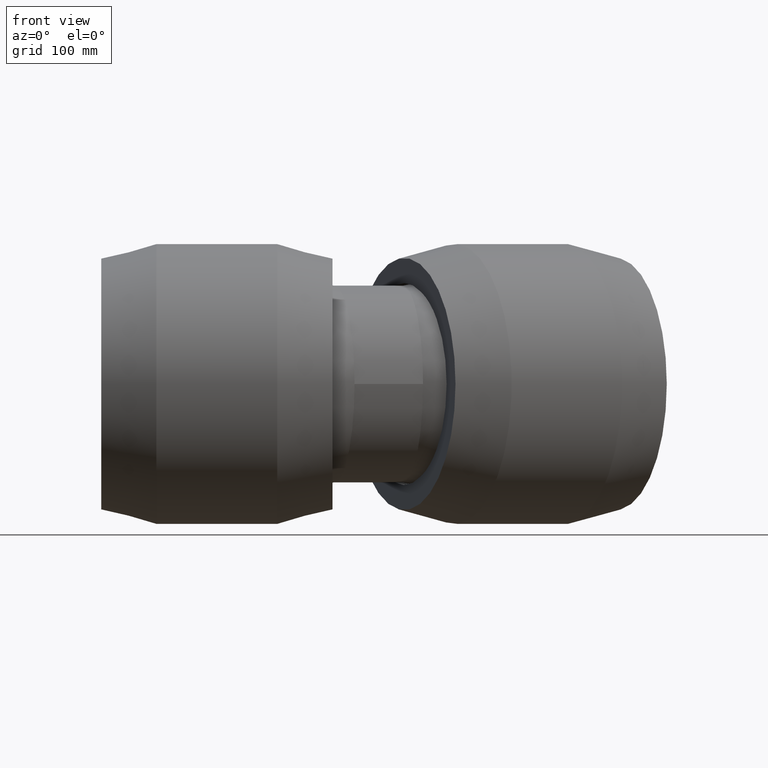
[diagram: clean part render]
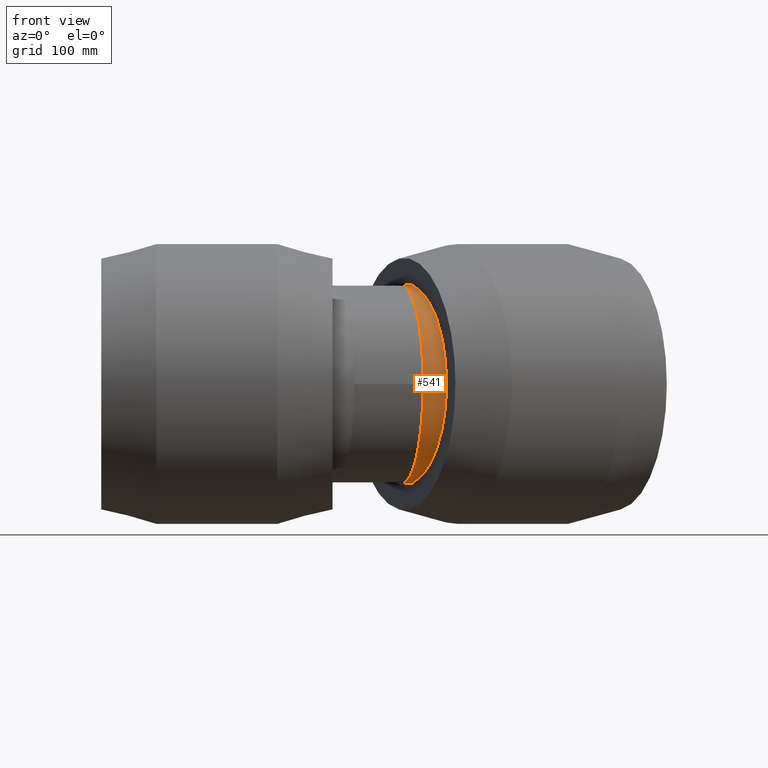
[diagram: same view with one face highlighted and labeled with its STEP entity id]
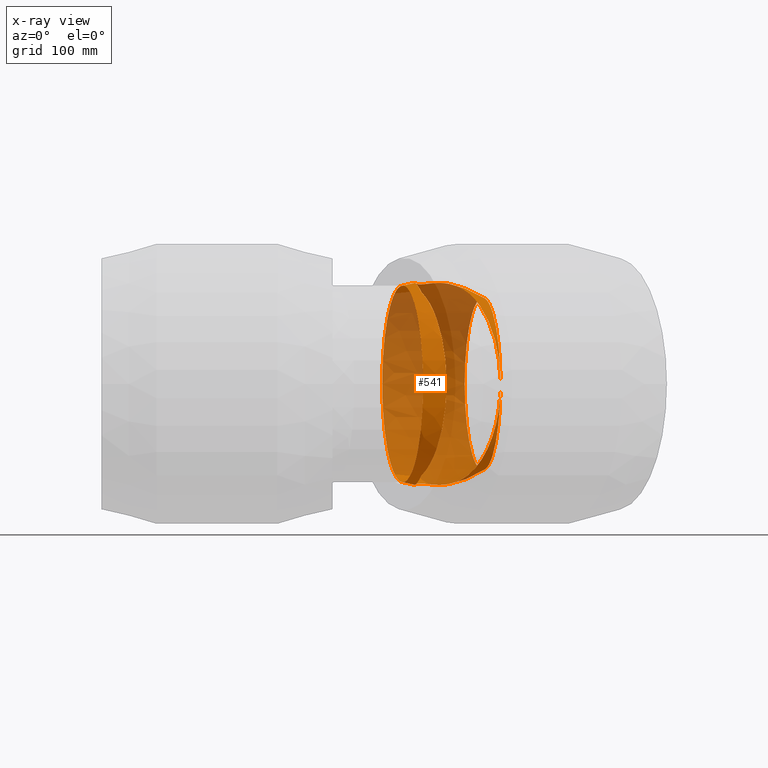
[diagram: x-ray of the same camera — body ghosted, the highlighted face saturated]
A machine part, front view. The second image highlights one B-rep face of the part: STEP entity #541.
The next image is the same camera in x-ray: the body ghosted, the highlighted face saturated — about 71% of this face is hidden behind the body in this view.
In plain terms, the highlighted spherical surface has radius 113.63 mm.
Its self-contained STEP definition (entity closure, byte-faithful):
#63=FACE_BOUND('',#164,.T.);
#113=FACE_OUTER_BOUND('',#163,.T.);
#163=EDGE_LOOP('',(#427,#428,#429,#430));
#164=EDGE_LOOP('',(#431));
#263=B_SPLINE_CURVE_WITH_KNOTS('',3,(#894,#895,#896,#897,#898,#899,#900,
#901,#902,#903,#904,#905,#906,#907,#908,#909,#910,#911,#912,#913,#914,#915,
#916,#917,#918,#919,#920,#921,#922,#923,#924,#925,#926,#927,#928,#929,#930,
#931,#932,#933,#934,#935,#936,#937,#938,#939,#940,#941,#942,#943,#944,#945),
 .UNSPECIFIED.,.F.,.F.,(4,2,2,2,2,2,2,2,2,2,2,2,2,2,2,2,2,2,2,2,2,2,2,2,
2,4),(-46.1888899912947,-46.1614777300863,-44.6798500027999,-43.1982222755135,
-42.0410535056663,-40.8838847358192,-40.4508427336772,-40.0178007315353,
-39.5350995546189,-39.2937489661607,-39.0523983777025,-38.8110477892443,
-38.5696972007861,-38.0869960238696,-37.6539540217277,-37.2209120195858,
-36.0637432497386,-34.9065744798915,-33.4249467526051,-31.9433190253187,
-30.4616912980323,-28.9800635707458,-26.6165974752722,-24.2531313797985,
-21.8896652843249,-19.5261991888512),.UNSPECIFIED.);
#264=B_SPLINE_CURVE_WITH_KNOTS('',3,(#948,#949,#950,#951,#952,#953,#954,
#955,#956,#957,#958,#959,#960,#961,#962,#963,#964,#965,#966,#967,#968,#969,
#970,#971,#972,#973,#974,#975,#976,#977,#978,#979,#980,#981,#982,#983,#984,
#985,#986,#987,#988,#989,#990,#991,#992,#993,#994,#995,#996,#997,#998,#999,
#1000),.UNSPECIFIED.,.F.,.F.,(4,2,2,2,2,2,2,2,2,2,2,2,2,2,2,3,2,2,2,2,2,
2,2,2,2,4),(-19.5261991888512,-17.1627330933776,-14.7992669979039,-12.4358009024303,
-10.0723348069566,-8.59070707967021,-7.1090793523838,-5.62745162509738,
-4.14582389781097,-2.98865512796382,-1.83148635811668,-1.39844435597475,
-0.9654023538328,-0.482701176916393,-0.241350588458189,0.,0.241350588458202,
0.482701176916404,0.965402353832807,1.39844435597475,1.83148635811669,2.98865512796384,
4.14582389781099,5.6274516250974,7.10907935238381,7.13649161359224),
 .UNSPECIFIED.);
#271=CIRCLE('',#594,96.0491482905179);
#272=CIRCLE('',#595,110.156719827347);
#273=CIRCLE('',#596,109.509148290518);
#319=VERTEX_POINT('',#891);
#320=VERTEX_POINT('',#893);
#321=VERTEX_POINT('',#946);
#322=VERTEX_POINT('',#1001);
#371=EDGE_CURVE('',#319,#319,#271,.T.);
#372=EDGE_CURVE('',#320,#319,#263,.T.);
#373=EDGE_CURVE('',#321,#320,#272,.T.);
#374=EDGE_CURVE('',#319,#321,#264,.T.);
#375=EDGE_CURVE('',#322,#322,#273,.T.);
#427=ORIENTED_EDGE('',*,*,#371,.T.);
#428=ORIENTED_EDGE('',*,*,#372,.F.);
#429=ORIENTED_EDGE('',*,*,#373,.F.);
#430=ORIENTED_EDGE('',*,*,#374,.F.);
#431=ORIENTED_EDGE('',*,*,#375,.F.);
#539=SPHERICAL_SURFACE('',#593,113.630281011888);
#541=ADVANCED_FACE('',(#113,#63),#539,.T.);
#593=AXIS2_PLACEMENT_3D('',#890,#693,#694);
#594=AXIS2_PLACEMENT_3D('',#892,#695,#696);
#595=AXIS2_PLACEMENT_3D('',#947,#697,#698);
#596=AXIS2_PLACEMENT_3D('',#1002,#699,#700);
#693=DIRECTION('center_axis',(0.,0.,1.));
#694=DIRECTION('ref_axis',(1.,0.,0.));
#695=DIRECTION('center_axis',(-0.978147600733806,-0.20791169081776,0.));
#696=DIRECTION('ref_axis',(0.20791169081776,-0.978147600733806,0.));
#697=DIRECTION('center_axis',(0.913545457642601,0.406736643075799,1.19788532833232E-16));
#698=DIRECTION('ref_axis',(1.31124873788268E-16,0.,-1.));
#699=DIRECTION('center_axis',(-0.978147600733806,-0.20791169081776,0.));
#700=DIRECTION('ref_axis',(0.20791169081776,-0.978147600733806,0.));
#890=CARTESIAN_POINT('Origin',(236.572699333174,22.9077944121566,0.));
#891=CARTESIAN_POINT('',(315.93140194137,-58.4189360224589,0.));
#892=CARTESIAN_POINT('Origin',(295.961661118682,35.5313079304367,0.));
#893=CARTESIAN_POINT('',(227.801700814858,-25.9397179032731,-102.219523029734));
#894=CARTESIAN_POINT('Ctrl Pts',(227.801700814858,-25.9397179032732,-102.219523029734));
#895=CARTESIAN_POINT('Ctrl Pts',(227.782970214512,-25.8515973569187,-102.260025893401));
#896=CARTESIAN_POINT('Ctrl Pts',(227.764246868289,-25.7634219688063,-102.300412415486));
#897=CARTESIAN_POINT('Ctrl Pts',(226.73394300176,-20.906410527919,-104.517257692727));
#898=CARTESIAN_POINT('Ctrl Pts',(225.742947701359,-15.9738030058781,-106.34976194955));
#899=CARTESIAN_POINT('Ctrl Pts',(223.922031706787,-6.06749496938946,-109.269058835396));
#900=CARTESIAN_POINT('Ctrl Pts',(223.092264588292,-1.09379272417964,-110.355941381627));
#901=CARTESIAN_POINT('Ctrl Pts',(221.874636927151,7.51537540381043,-111.685985597009));
#902=CARTESIAN_POINT('Ctrl Pts',(221.359642940201,11.6994111076561,-112.127762407932));
#903=CARTESIAN_POINT('Ctrl Pts',(220.644907008276,20.110441941565,-112.553011041626));
#904=CARTESIAN_POINT('Ctrl Pts',(220.447225050233,24.3375706822229,-112.537299590682));
#905=CARTESIAN_POINT('Ctrl Pts',(220.573620831222,29.6317361569896,-112.306466744466));
#906=CARTESIAN_POINT('Ctrl Pts',(220.653647278243,31.2143590498833,-112.21378298127));
#907=CARTESIAN_POINT('Ctrl Pts',(220.968462820491,34.3571292159531,-111.981109392535));
#908=CARTESIAN_POINT('Ctrl Pts',(221.205637717693,35.9170702948545,-111.841568910845));
#909=CARTESIAN_POINT('Ctrl Pts',(221.885681369977,38.8786241287294,-111.551126206677));
#910=CARTESIAN_POINT('Ctrl Pts',(222.413823007661,40.5535582622771,-111.367689052123));
#911=CARTESIAN_POINT('Ctrl Pts',(223.626988929227,42.7227018449423,-111.140950279653));
#912=CARTESIAN_POINT('Ctrl Pts',(224.102022850532,43.3887721072725,-111.074242944557));
#913=CARTESIAN_POINT('Ctrl Pts',(225.219150207993,44.5213095287038,-110.979405979479));
#914=CARTESIAN_POINT('Ctrl Pts',(225.861541706126,44.9875051725231,-110.951545556039));
#915=CARTESIAN_POINT('Ctrl Pts',(227.331439931362,45.6419460268821,-110.951545556039));
#916=CARTESIAN_POINT('Ctrl Pts',(228.107734624392,45.8073901708198,-110.979405979479));
#917=CARTESIAN_POINT('Ctrl Pts',(229.696878054866,45.8797621343892,-111.074242944557));
#918=CARTESIAN_POINT('Ctrl Pts',(230.509724459525,45.7870931364227,-111.140950279653));
#919=CARTESIAN_POINT('Ctrl Pts',(232.933478737412,45.2372107527323,-111.367689052123));
#920=CARTESIAN_POINT('Ctrl Pts',(234.53159310604,44.5089467855043,-111.551126206677));
#921=CARTESIAN_POINT('Ctrl Pts',(237.18749453446,43.0326513941727,-111.841568910845));
#922=CARTESIAN_POINT('Ctrl Pts',(238.505457658073,42.1651023717521,-111.981109392535));
#923=CARTESIAN_POINT('Ctrl Pts',(241.051643759328,40.2961322060853,-112.21378298127));
#924=CARTESIAN_POINT('Ctrl Pts',(242.281309917884,39.2966220301303,-112.306466744466));
#925=CARTESIAN_POINT('Ctrl Pts',(246.300216881252,35.8480642464398,-112.537299590682));
#926=CARTESIAN_POINT('Ctrl Pts',(249.309310683048,32.8726567048367,-112.553011041626));
#927=CARTESIAN_POINT('Ctrl Pts',(255.081673036682,26.7134262334473,-112.127762407932));
#928=CARTESIAN_POINT('Ctrl Pts',(257.846419280848,23.5310447693517,-111.685985597009));
#929=CARTESIAN_POINT('Ctrl Pts',(263.429526091611,16.8655131838896,-110.355941381627));
#930=CARTESIAN_POINT('Ctrl Pts',(266.570484603468,12.9208196442428,-109.269058835396));
#931=CARTESIAN_POINT('Ctrl Pts',(272.713875536794,4.93900144201451,-106.34976194955));
#932=CARTESIAN_POINT('Ctrl Pts',(275.716412006653,0.901989750295616,-104.517257692727));
#933=CARTESIAN_POINT('Ctrl Pts',(281.450434415441,-6.98339911762793,-100.164106742578));
#934=CARTESIAN_POINT('Ctrl Pts',(284.18436237273,-10.8349778591306,-97.6416477326393));
#935=CARTESIAN_POINT('Ctrl Pts',(289.277380899458,-18.1206807053384,-92.0772354082082));
#936=CARTESIAN_POINT('Ctrl Pts',(291.636541320935,-21.5547732580831,-89.0353047162495));
#937=CARTESIAN_POINT('Ctrl Pts',(297.174108700543,-29.6988787082914,-80.8326310601753));
#938=CARTESIAN_POINT('Ctrl Pts',(300.337023075567,-34.4425142774637,-74.9950016755737));
#939=CARTESIAN_POINT('Ctrl Pts',(305.888960518634,-42.8585098508572,-62.042294640774));
#940=CARTESIAN_POINT('Ctrl Pts',(308.278883826617,-46.5312436765606,-54.9278457774499));
#941=CARTESIAN_POINT('Ctrl Pts',(312.115697705181,-52.4602834021991,-39.9190855429027));
#942=CARTESIAN_POINT('Ctrl Pts',(313.566508311679,-54.7223156966646,-32.0101981066605));
#943=CARTESIAN_POINT('Ctrl Pts',(315.474622273742,-57.7020315455989,-15.9898691268831));
#944=CARTESIAN_POINT('Ctrl Pts',(315.93140194137,-58.418936022459,-7.87822031824567));
#945=CARTESIAN_POINT('Ctrl Pts',(315.93140194137,-58.418936022459,-1.75415237890775E-13));
#946=CARTESIAN_POINT('',(227.801700814858,-25.9397179032734,102.219523029734));
#947=CARTESIAN_POINT('Origin',(211.102340288222,11.5676599402362,-3.33979761511123E-15));
#948=CARTESIAN_POINT('Ctrl Pts',(315.93140194137,-58.418936022459,-1.73194791841524E-13));
#949=CARTESIAN_POINT('Ctrl Pts',(315.93140194137,-58.418936022459,7.87822031824532));
#950=CARTESIAN_POINT('Ctrl Pts',(315.474622273743,-57.702031545599,15.9898691268827));
#951=CARTESIAN_POINT('Ctrl Pts',(313.566508311679,-54.7223156966647,32.0101981066602));
#952=CARTESIAN_POINT('Ctrl Pts',(312.115697705181,-52.4602834021992,39.9190855429024));
#953=CARTESIAN_POINT('Ctrl Pts',(308.278883826617,-46.5312436765607,54.9278457774496));
#954=CARTESIAN_POINT('Ctrl Pts',(305.888960518634,-42.8585098508574,62.0422946407737));
#955=CARTESIAN_POINT('Ctrl Pts',(300.337023075567,-34.442514277464,74.9950016755735));
#956=CARTESIAN_POINT('Ctrl Pts',(297.174108700543,-29.6988787082917,80.8326310601751));
#957=CARTESIAN_POINT('Ctrl Pts',(291.636541320935,-21.5547732580834,89.0353047162493));
#958=CARTESIAN_POINT('Ctrl Pts',(289.277380899459,-18.1206807053387,92.077235408208));
#959=CARTESIAN_POINT('Ctrl Pts',(284.18436237273,-10.834977859131,97.641647732639));
#960=CARTESIAN_POINT('Ctrl Pts',(281.450434415441,-6.98339911762835,100.164106742578));
#961=CARTESIAN_POINT('Ctrl Pts',(275.716412006653,0.901989750295242,104.517257692727));
#962=CARTESIAN_POINT('Ctrl Pts',(272.713875536794,4.93900144201422,106.34976194955));
#963=CARTESIAN_POINT('Ctrl Pts',(266.570484603469,12.9208196442425,109.269058835396));
#964=CARTESIAN_POINT('Ctrl Pts',(263.429526091611,16.8655131838892,110.355941381627));
#965=CARTESIAN_POINT('Ctrl Pts',(257.846419280848,23.5310447693513,111.685985597009));
#966=CARTESIAN_POINT('Ctrl Pts',(255.081673036682,26.713426233447,112.127762407932));
#967=CARTESIAN_POINT('Ctrl Pts',(249.309310683048,32.8726567048364,112.553011041626));
#968=CARTESIAN_POINT('Ctrl Pts',(246.300216881252,35.8480642464394,112.537299590682));
#969=CARTESIAN_POINT('Ctrl Pts',(242.281309917884,39.2966220301299,112.306466744466));
#970=CARTESIAN_POINT('Ctrl Pts',(241.051643759328,40.296132206085,112.21378298127));
#971=CARTESIAN_POINT('Ctrl Pts',(238.505457658073,42.1651023717517,111.981109392535));
#972=CARTESIAN_POINT('Ctrl Pts',(237.187494534459,43.0326513941723,111.841568910845));
#973=CARTESIAN_POINT('Ctrl Pts',(234.531593106039,44.5089467855039,111.551126206677));
#974=CARTESIAN_POINT('Ctrl Pts',(232.933478737412,45.2372107527325,111.367689052123));
#975=CARTESIAN_POINT('Ctrl Pts',(230.509724459525,45.7870931364228,111.140950279653));
#976=CARTESIAN_POINT('Ctrl Pts',(229.696878054866,45.8797621343895,111.074242944557));
#977=CARTESIAN_POINT('Ctrl Pts',(228.107734624392,45.8073901708201,110.979405979479));
#978=CARTESIAN_POINT('Ctrl Pts',(227.331439931362,45.6419460268818,110.951545556039));
#979=CARTESIAN_POINT('Ctrl Pts',(226.596490818744,45.3147255997023,110.951545556039));
#980=CARTESIAN_POINT('Ctrl Pts',(225.861541706126,44.9875051725228,110.951545556039));
#981=CARTESIAN_POINT('Ctrl Pts',(225.219150207993,44.5213095287037,110.979405979479));
#982=CARTESIAN_POINT('Ctrl Pts',(224.102022850532,43.3887721072724,111.074242944557));
#983=CARTESIAN_POINT('Ctrl Pts',(223.626988929228,42.7227018449421,111.140950279653));
#984=CARTESIAN_POINT('Ctrl Pts',(222.413823007661,40.553558262277,111.367689052123));
#985=CARTESIAN_POINT('Ctrl Pts',(221.885681369978,38.8786241287293,111.551126206677));
#986=CARTESIAN_POINT('Ctrl Pts',(221.205637717694,35.9170702948545,111.841568910845));
#987=CARTESIAN_POINT('Ctrl Pts',(220.968462820491,34.3571292159531,111.981109392535));
#988=CARTESIAN_POINT('Ctrl Pts',(220.653647278243,31.2143590498832,112.21378298127));
#989=CARTESIAN_POINT('Ctrl Pts',(220.573620831223,29.6317361569895,112.306466744466));
#990=CARTESIAN_POINT('Ctrl Pts',(220.447225050234,24.3375706822227,112.537299590682));
#991=CARTESIAN_POINT('Ctrl Pts',(220.644907008276,20.1104419415648,112.553011041626));
#992=CARTESIAN_POINT('Ctrl Pts',(221.359642940201,11.6994111076559,112.127762407932));
#993=CARTESIAN_POINT('Ctrl Pts',(221.874636927152,7.51537540381017,111.685985597009));
#994=CARTESIAN_POINT('Ctrl Pts',(223.092264588292,-1.09379272417991,110.355941381627));
#995=CARTESIAN_POINT('Ctrl Pts',(223.922031706788,-6.06749496938973,109.269058835396));
#996=CARTESIAN_POINT('Ctrl Pts',(225.742947701359,-15.9738030058783,106.34976194955));
#997=CARTESIAN_POINT('Ctrl Pts',(226.73394300176,-20.9064105279192,104.517257692727));
#998=CARTESIAN_POINT('Ctrl Pts',(227.764246868289,-25.7634219688066,102.300412415486));
#999=CARTESIAN_POINT('Ctrl Pts',(227.782970214512,-25.8515973569189,102.260025893401));
#1000=CARTESIAN_POINT('Ctrl Pts',(227.801700814858,-25.9397179032734,102.219523029734));
#1001=CARTESIAN_POINT('',(229.678902620297,-90.5131751204753,0.));
#1002=CARTESIAN_POINT('Origin',(206.910670439203,16.6029355382973,0.));